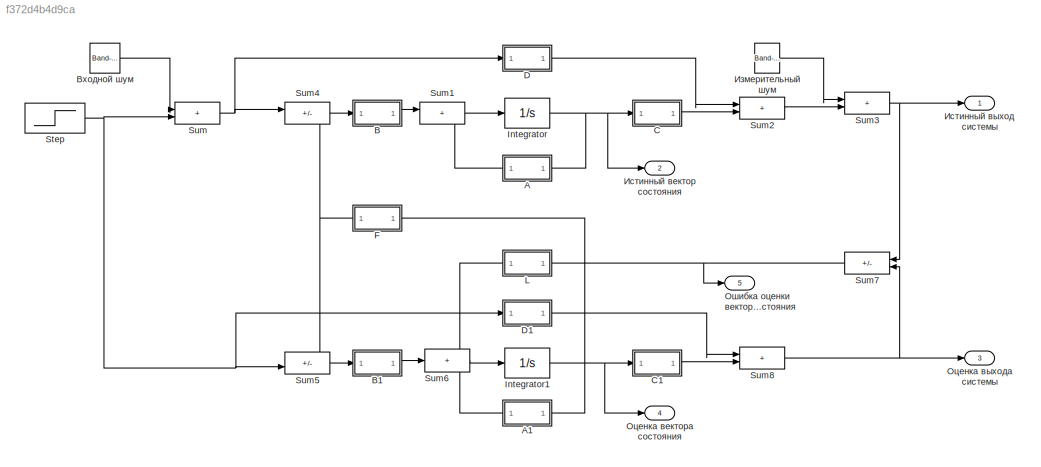
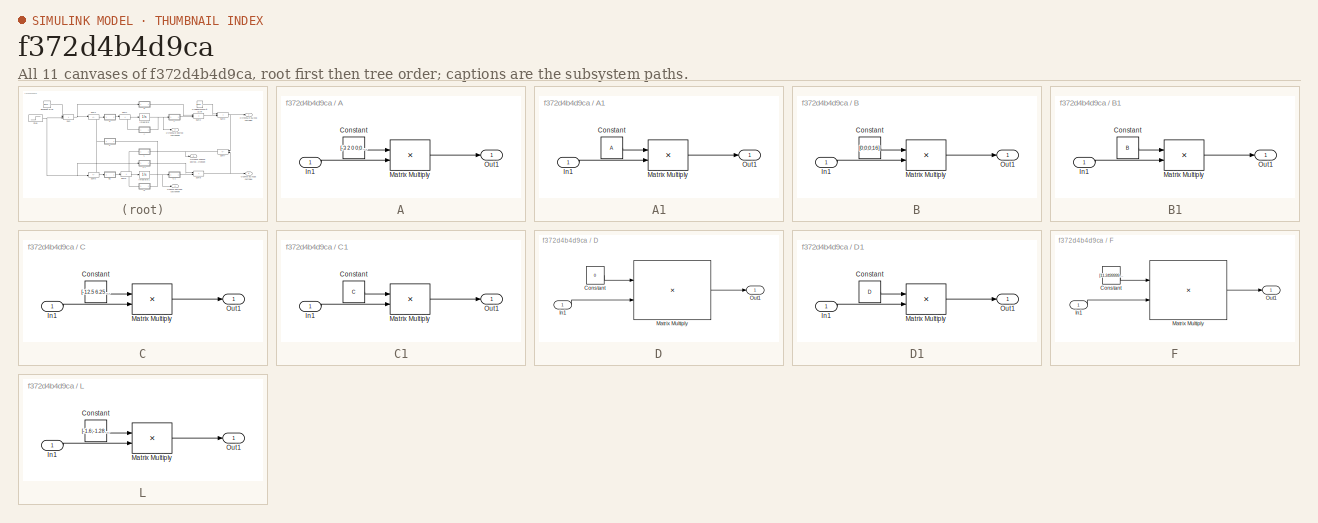
[diagram: thumbnail index - all 11 canvases of the model, root first then tree order]
MODEL slx_f372d4b4d9ca
KIND model
CONFIG AbsTol = auto
CONFIG EnableMultiTasking = off
CONFIG FixedStep = auto
CONFIG MaxStep = auto
CONFIG MinStep = auto
CONFIG RelTol = 1e-3
CONFIG SampleTimeConstraint = Unconstrained
CONFIG SolverName = VariableStepAuto
CONFIG StartTime = 0.0
CONFIG StopTime = 10.0
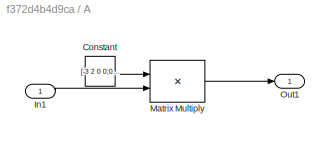
BLOCK [SubSystem] A
  PortSchema = {"entries":[{"content":{"sides":[{"content":{"connectorIds":["Out1"]},"type":"ConnectorPlacement.EquallySpacedRectSide","uuid":"553fa999-2026-4954-8d58-e45988c3f902"},{"content":{"connectorIds":["In1"],"side":"RIGHT"},"type":"ConnectorPlacement.EquallySpacedRectSide","uuid":"47cbfa4f-fe07-47a2-a7c5-8d72da3022ae"},{"content":{"side":"TOP"},"type":"ConnectorPlacement.EquallySpacedRectSide","uuid":"1...<+222ch>  <repeated x4 — deduplicated; at blocks: A, A1, F, L>
BLOCK [Constant] A/Constant
  Value = [-3 2 0 0;0 -4 1 0;0 0 -5 1;0 0 0 -6]
  VectorParams1D = off
BLOCK [Inport] A/In1
BLOCK [Product] A/Matrix Multiply
  Multiplication = Matrix(*)
BLOCK [Outport] A/Out1
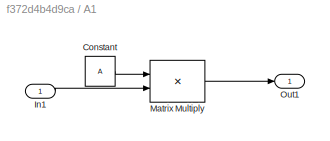
BLOCK [SubSystem] A1
BLOCK [Constant] A1/Constant
  Value = A
  VectorParams1D = off
BLOCK [Inport] A1/In1
BLOCK [Product] A1/Matrix Multiply
  Multiplication = Matrix(*)
BLOCK [Outport] A1/Out1
BLOCK [SubSystem] B
BLOCK [Constant] B/Constant
  Value = [0;0;0;16]
  VectorParams1D = off
BLOCK [Inport] B/In1
BLOCK [Product] B/Matrix Multiply
  Multiplication = Matrix(*)
BLOCK [Outport] B/Out1
BLOCK [SubSystem] B1
BLOCK [Constant] B1/Constant
  Value = B
  VectorParams1D = off
BLOCK [Inport] B1/In1
BLOCK [Product] B1/Matrix Multiply
  Multiplication = Matrix(*)
BLOCK [Outport] B1/Out1
BLOCK [SubSystem] C
BLOCK [Constant] C/Constant
  Value = [-12.5 6.25 0 0]
  VectorParams1D = off
BLOCK [Inport] C/In1
BLOCK [Product] C/Matrix Multiply
  Multiplication = Matrix(*)
BLOCK [Outport] C/Out1
BLOCK [SubSystem] C1
BLOCK [Constant] C1/Constant
  Value = C
  VectorParams1D = off
BLOCK [Inport] C1/In1
BLOCK [Product] C1/Matrix Multiply
  Multiplication = Matrix(*)
BLOCK [Outport] C1/Out1
BLOCK [SubSystem] D
BLOCK [Constant] D/Constant
  Value = 0
  VectorParams1D = off
BLOCK [Inport] D/In1
BLOCK [Product] D/Matrix Multiply
  Multiplication = Matrix(*)
BLOCK [Outport] D/Out1
BLOCK [SubSystem] D1
BLOCK [Constant] D1/Constant
  Value = D
  VectorParams1D = off
BLOCK [Inport] D1/In1
BLOCK [Product] D1/Matrix Multiply
  Multiplication = Matrix(*)
BLOCK [Outport] D1/Out1
BLOCK [SubSystem] F
BLOCK [Constant] F/Constant
  Value = [11.2499999999979 14.9999999999976 4.49999999999944 0.749999999999944]
  VectorParams1D = off
BLOCK [Inport] F/In1
BLOCK [Product] F/Matrix Multiply
  Multiplication = Matrix(*)
BLOCK [Outport] F/Out1
BLOCK [Integrator] Integrator
BLOCK [Integrator] Integrator1
BLOCK [SubSystem] L
BLOCK [Constant] L/Constant
  Value = [-1.6;-1.28;-0.640000000000002;0]
  VectorParams1D = off
BLOCK [Inport] L/In1
BLOCK [Product] L/Matrix Multiply
  Multiplication = Matrix(*)
BLOCK [Outport] L/Out1
BLOCK [Step] Step
  SampleTime = 0.01
  VectorParams1D = off
BLOCK [Sum] Sum
  IconShape = rectangular
  Inputs = |++
BLOCK [Sum] Sum1
  IconShape = rectangular
  Inputs = |++
BLOCK [Sum] Sum2
  IconShape = rectangular
  Inputs = |++
BLOCK [Sum] Sum3
  IconShape = rectangular
  Inputs = |++
BLOCK [Sum] Sum4
  IconShape = rectangular
  Inputs = |+-
BLOCK [Sum] Sum5
  IconShape = rectangular
  Inputs = |-+
BLOCK [Sum] Sum6
  IconShape = rectangular
  Inputs = |+++
BLOCK [Sum] Sum7
  IconShape = rectangular
  Inputs = |+-
  NameLocation = top
BLOCK [Sum] Sum8
  IconShape = rectangular
  Inputs = |++
BLOCK [Reference] Входной шум  REF=simulink/Sources/Band-Limited
White Noise
  SourceBlock = simulink/Sources/Band-Limited\nWhite Noise
  SourceType = Band-Limited White Noise.
BLOCK [Reference] Измерительный шум  REF=simulink/Sources/Band-Limited
White Noise
  SourceBlock = simulink/Sources/Band-Limited\nWhite Noise
  SourceType = Band-Limited White Noise.
BLOCK [Outport] Истинный вектор состояния
  Port = 2
BLOCK [Outport] Истинный выход системы
BLOCK [Outport] Оценка вектора состояния
  Port = 4
BLOCK [Outport] Оценка выхода системы
  Port = 3
BLOCK [Outport] Ошибка оценки вектора состояния
  Port = 5
LINE A/Constant:1 -> A/Matrix Multiply:1
LINE A/In1:1 -> A/Matrix Multiply:2
LINE A/Matrix Multiply:1 -> A/Out1:1
LINE A1/Constant:1 -> A1/Matrix Multiply:1
LINE A1/In1:1 -> A1/Matrix Multiply:2
LINE A1/Matrix Multiply:1 -> A1/Out1:1
LINE A1:1 -> Sum6:3
LINE A:1 -> Sum1:2
LINE B/Constant:1 -> B/Matrix Multiply:1
LINE B/In1:1 -> B/Matrix Multiply:2
LINE B/Matrix Multiply:1 -> B/Out1:1
LINE B1/Constant:1 -> B1/Matrix Multiply:1
LINE B1/In1:1 -> B1/Matrix Multiply:2
LINE B1/Matrix Multiply:1 -> B1/Out1:1
LINE B1:1 -> Sum6:2
LINE B:1 -> Sum1:1
LINE C/Constant:1 -> C/Matrix Multiply:1
LINE C/In1:1 -> C/Matrix Multiply:2
LINE C/Matrix Multiply:1 -> C/Out1:1
LINE C1/Constant:1 -> C1/Matrix Multiply:1
LINE C1/In1:1 -> C1/Matrix Multiply:2
LINE C1/Matrix Multiply:1 -> C1/Out1:1
LINE C1:1 -> Sum8:2
LINE C:1 -> Sum2:2
LINE D/Constant:1 -> D/Matrix Multiply:1
LINE D/In1:1 -> D/Matrix Multiply:2
LINE D/Matrix Multiply:1 -> D/Out1:1
LINE D1/Constant:1 -> D1/Matrix Multiply:1
LINE D1/In1:1 -> D1/Matrix Multiply:2
LINE D1/Matrix Multiply:1 -> D1/Out1:1
LINE D1:1 -> Sum8:1
LINE D:1 -> Sum2:1
LINE F/Constant:1 -> F/Matrix Multiply:1
LINE F/In1:1 -> F/Matrix Multiply:2
LINE F/Matrix Multiply:1 -> F/Out1:1
NET F:1 -> Sum4:2, Sum5:1
NET Integrator1:1 -> A1:1, C1:1, F:1, Оценка вектора состояния:1
NET Integrator:1 -> A:1, C:1, Истинный вектор состояния:1
LINE L/Constant:1 -> L/Matrix Multiply:1
LINE L/In1:1 -> L/Matrix Multiply:2
LINE L/Matrix Multiply:1 -> L/Out1:1
LINE L:1 -> Sum6:1
NET Step:1 -> D1:1, Sum5:2, Sum:2
LINE Sum1:1 -> Integrator:1
LINE Sum2:1 -> Sum3:2
NET Sum3:1 -> Sum7:1, Истинный выход системы:1
LINE Sum4:1 -> B:1
LINE Sum5:1 -> B1:1
LINE Sum6:1 -> Integrator1:1
NET Sum7:1 -> L:1, Ошибка оценки вектора состояния:1
NET Sum8:1 -> Sum7:2, Оценка выхода системы:1
NET Sum:1 -> D:1, Sum4:1
LINE Входной шум:1 -> Sum:1
LINE Измерительный шум:1 -> Sum3:1
note: NET lines group one-source signal fan-out (src -> all destinations, sorted); 1:1 wires keep LINE
